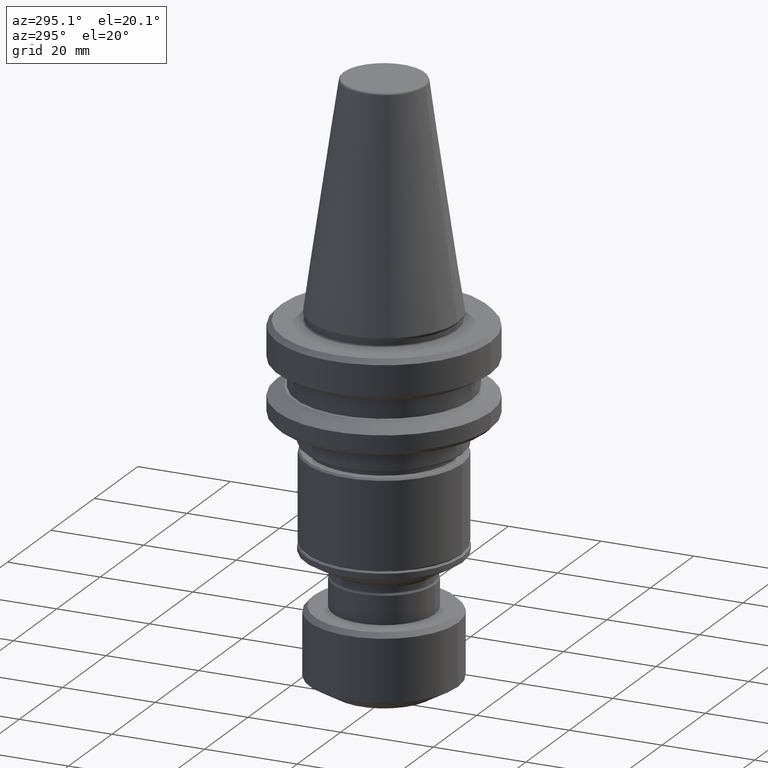
[diagram: clean part render]
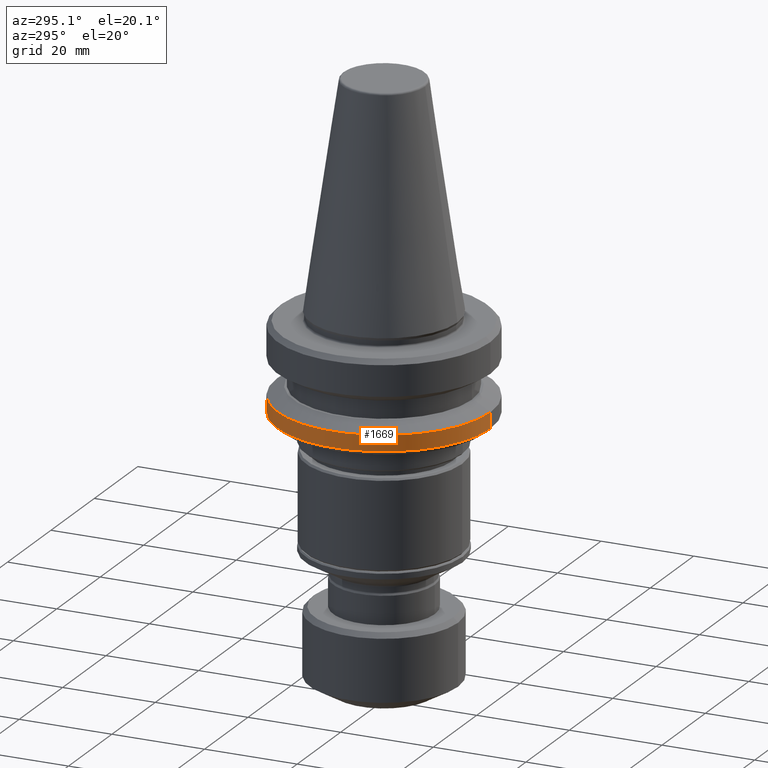
[diagram: same view with one face highlighted and labeled with its STEP entity id]
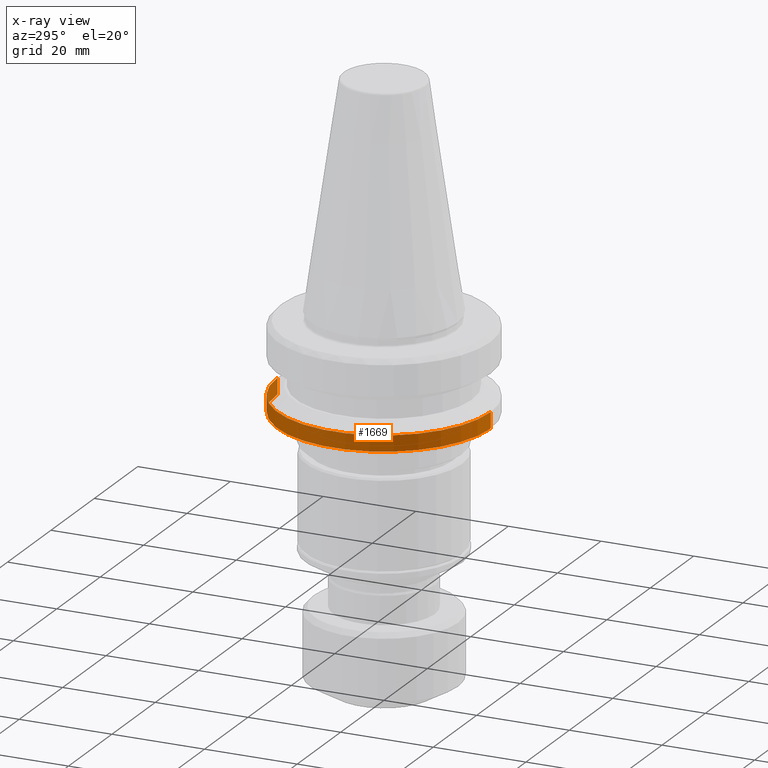
[diagram: x-ray of the same camera — body ghosted, the highlighted face saturated]
A machine part, auxiliary view. The second image highlights one B-rep face of the part: STEP entity #1669.
The next image is the same camera in x-ray: the body ghosted, the highlighted face saturated — about 0% of this face is hidden behind the body in this view.
In plain terms, the highlighted cylindrical surface (partial cylindrical patch) has radius 23 mm, axis along (-0, 0, 1).
Its self-contained STEP definition (entity closure, byte-faithful):
#17 = VECTOR ( 'NONE', #1623, 1000.000000000000000 ) ;
#87 = CIRCLE ( 'NONE', #1852, 23.00000000000153800 ) ;
#90 = FACE_OUTER_BOUND ( 'NONE', #325, .T. ) ;
#141 = CARTESIAN_POINT ( 'NONE',  ( 2.816687638039102500E-015, 23.00000000000155300, 121.2238565293475700 ) ) ;
#144 = VERTEX_POINT ( 'NONE', #1874 ) ;
#221 = CIRCLE ( 'NONE', #1657, 23.00000000000156700 ) ;
#325 = EDGE_LOOP ( 'NONE', ( #715, #1145, #1709, #1834 ) ) ;
#359 = VERTEX_POINT ( 'NONE', #1502 ) ;
#428 = CYLINDRICAL_SURFACE ( 'NONE', #910, 23.00000000000155300 ) ;
#444 = VECTOR ( 'NONE', #1734, 1000.000000000000000 ) ;
#448 = DIRECTION ( 'NONE',  ( -0.0000000000000000000, 1.249865351798584200E-014, 1.000000000000000000 ) ) ;
#463 = CARTESIAN_POINT ( 'NONE',  ( 0.0000000000000000000, -23.00000000000334300, -20.99999999999978700 ) ) ;
#562 = DIRECTION ( 'NONE',  ( -0.0000000000000000000, 1.249865351798584200E-014, 1.000000000000000000 ) ) ;
#715 = ORIENTED_EDGE ( 'NONE', *, *, #1063, .F. ) ;
#793 = DIRECTION ( 'NONE',  ( 0.0000000000000000000, -1.000000000000000000, 1.252017813096220500E-014 ) ) ;
#805 = CARTESIAN_POINT ( 'NONE',  ( 2.816687638039104400E-015, 22.99999999999979000, -21.00000000000036200 ) ) ;
#825 = LINE ( 'NONE', #990, #444 ) ;
#829 = EDGE_CURVE ( 'NONE', #1241, #1605, #221, .T. ) ;
#870 = LINE ( 'NONE', #141, #17 ) ;
#910 = AXIS2_PLACEMENT_3D ( 'NONE', #1554, #1121, #919 ) ;
#919 = DIRECTION ( 'NONE',  ( 0.0000000000000000000, -1.000000000000000000, 1.267102365061234400E-014 ) ) ;
#990 = CARTESIAN_POINT ( 'NONE',  ( 0.0000000000000000000, -23.00000000000155300, 121.2238565293481500 ) ) ;
#1060 = EDGE_CURVE ( 'NONE', #1605, #144, #825, .T. ) ;
#1063 = EDGE_CURVE ( 'NONE', #1241, #359, #870, .T. ) ;
#1108 = CARTESIAN_POINT ( 'NONE',  ( 0.0000000000000000000, -1.777606704752048300E-012, -21.00000000000007500 ) ) ;
#1121 = DIRECTION ( 'NONE',  ( -0.0000000000000000000, 1.249865351798584200E-014, 1.000000000000000000 ) ) ;
#1145 = ORIENTED_EDGE ( 'NONE', *, *, #829, .T. ) ;
#1241 = VERTEX_POINT ( 'NONE', #805 ) ;
#1248 = EDGE_CURVE ( 'NONE', #359, #144, #87, .T. ) ;
#1472 = DIRECTION ( 'NONE',  ( 0.0000000000000000000, -1.000000000000000000, 1.252017813096219000E-014 ) ) ;
#1486 = CARTESIAN_POINT ( 'NONE',  ( 0.0000000000000000000, -1.735109816260705700E-012, -17.59988266494566400 ) ) ;
#1502 = CARTESIAN_POINT ( 'NONE',  ( 2.816687638039103700E-015, 22.99999999999980100, -17.59988266494595200 ) ) ;
#1554 = CARTESIAN_POINT ( 'NONE',  ( 0.0000000000000000000, 0.0000000000000000000, 121.2238565293478600 ) ) ;
#1605 = VERTEX_POINT ( 'NONE', #463 ) ;
#1623 = DIRECTION ( 'NONE',  ( -0.0000000000000000000, 1.249865351798584200E-014, 1.000000000000000000 ) ) ;
#1657 = AXIS2_PLACEMENT_3D ( 'NONE', #1108, #448, #1472 ) ;
#1669 = ADVANCED_FACE ( 'NONE', ( #90 ), #428, .T. ) ;
#1709 = ORIENTED_EDGE ( 'NONE', *, *, #1060, .T. ) ;
#1734 = DIRECTION ( 'NONE',  ( -0.0000000000000000000, 1.249865351798584200E-014, 1.000000000000000000 ) ) ;
#1834 = ORIENTED_EDGE ( 'NONE', *, *, #1248, .F. ) ;
#1852 = AXIS2_PLACEMENT_3D ( 'NONE', #1486, #562, #793 ) ;
#1874 = CARTESIAN_POINT ( 'NONE',  ( 0.0000000000000000000, -23.00000000000327200, -17.59988266494537600 ) ) ;